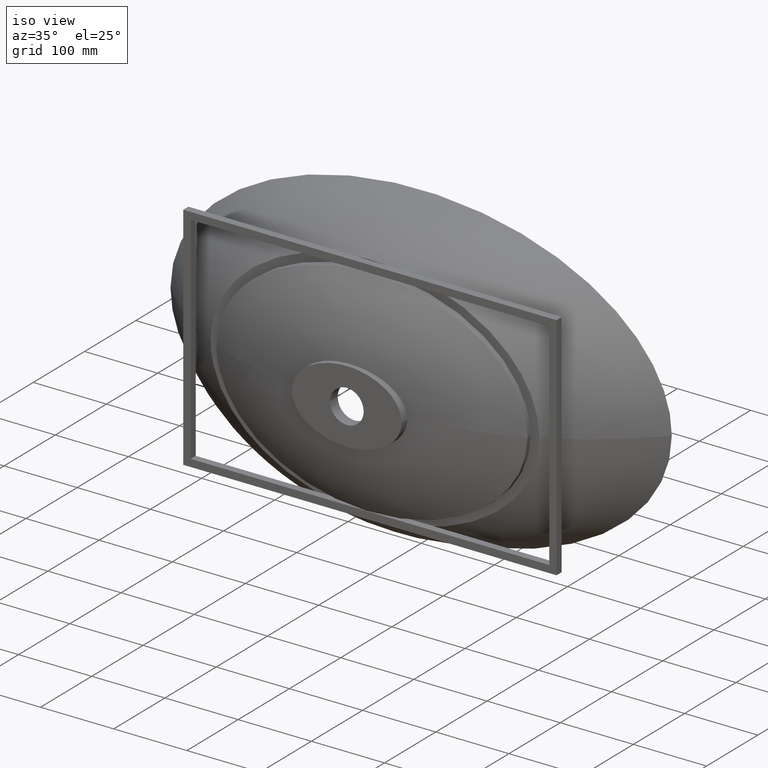
[diagram: clean part render]
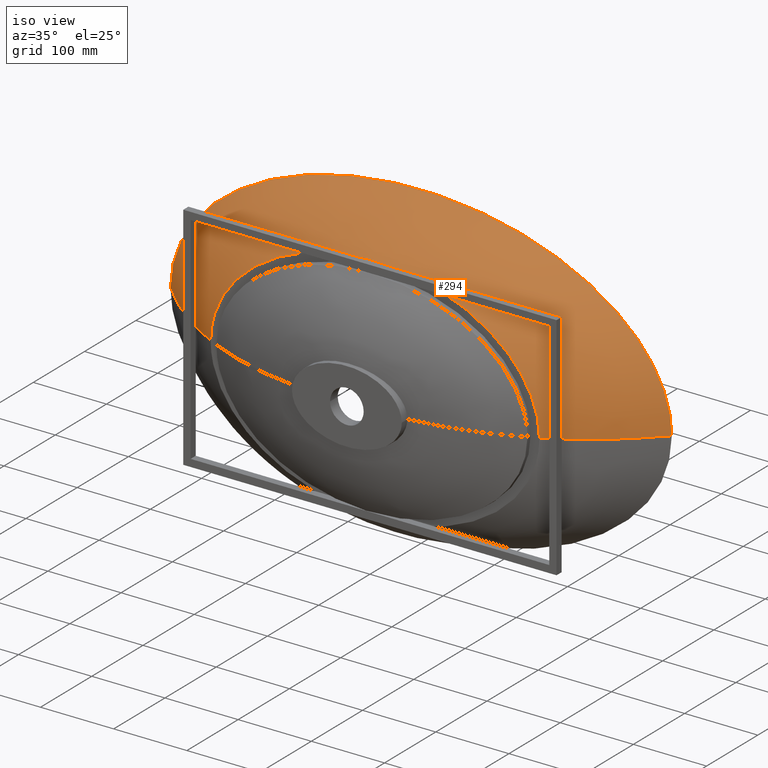
[diagram: same view with one face highlighted and labeled with its STEP entity id]
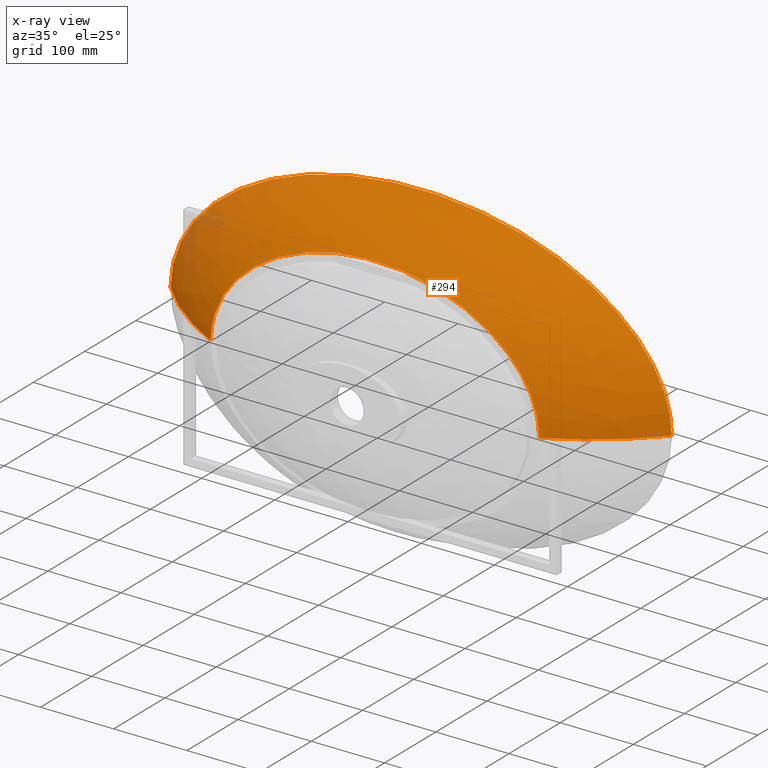
[diagram: x-ray of the same camera — body ghosted, the highlighted face saturated]
A machine part, iso view. The second image highlights one B-rep face of the part: STEP entity #294.
The next image is the same camera in x-ray: the body ghosted, the highlighted face saturated — about 2% of this face is hidden behind the body in this view.
In plain terms, the highlighted face is a freeform B-spline surface patch.
Its self-contained STEP definition (entity closure, byte-faithful):
#23 = CARTESIAN_POINT ( 'NONE',  ( -245.0270232497479100, 0.0000000000000000000, 152.0240655199164900 ) ) ;
#57 = CARTESIAN_POINT ( 'NONE',  ( -300.2359668465141500, 0.0000000000000000000, 107.1870942838846500 ) ) ;
#115 = CARTESIAN_POINT ( 'NONE',  ( 342.5000000000002300, 0.0000000000000000000, 6.126513386457087700E-014 ) ) ;
#116 = CARTESIAN_POINT ( 'NONE',  ( 333.8923408305556700, -9.406890245646575700, 7.484318858684090400E-014 ) ) ;
#121 = CARTESIAN_POINT ( 'NONE',  ( 315.8171951831190000, -27.43378400293167000, 4.459661288317443800E-014 ) ) ;
#129 = CARTESIAN_POINT ( 'NONE',  ( 286.3597889812024300, -51.89858569104408300, 3.260724263599785300E-014 ) ) ;
#133 = CARTESIAN_POINT ( 'NONE',  ( -172.7603754928495900, 0.0000000000000000000, 186.2777896492970900 ) ) ;
#135 = CARTESIAN_POINT ( 'NONE',  ( 255.8672473174313800, -72.83503139525741700, 5.078996564792964000E-014 ) ) ;
#136 = CARTESIAN_POINT ( 'NONE',  ( 234.7931395452014000, -84.77091306894256200, 3.331875821828149800E-014 ) ) ;
#146 = CARTESIAN_POINT ( 'NONE',  ( 224.6087551990099200, -90.00000000000002800, 2.585414352173020600E-014 ) ) ;
#222 = VERTEX_POINT ( 'NONE', #2876 ) ;
#294 = ADVANCED_FACE ( 'NONE', ( #2212 ), #3892, .T. ) ;
#418 = CARTESIAN_POINT ( 'NONE',  ( -224.6087551990092900, -90.00000000000005700, 6.502527523159562800E-014 ) ) ;
#423 = CARTESIAN_POINT ( 'NONE',  ( -224.6087551954226200, -90.00000000092079200, 0.7998453074805304000 ) ) ;
#425 = CARTESIAN_POINT ( 'NONE',  ( -224.6000546803275000, -90.00000000000001400, 1.602438689250854600 ) ) ;
#426 = B_SPLINE_CURVE_WITH_KNOTS ( 'NONE', 3,
 ( #578, #558, #568, #860, #894, #57, #23, #133, #1126, #908, #1068, #1037, #499, #842, #454, #456, #461 ),
 .UNSPECIFIED., .F., .F.,
 ( 4, 1, 1, 1, 1, 1, 1, 1, 1, 1, 1, 1, 1, 1, 4 ),
 ( 0.0000000000000000000, 0.006249999999999977800, 0.008333333333333303700, 0.04166666666666663000, 0.08333333333333337000, 0.1250000000000000000, 0.1666666666666666300, 0.2083333333333333700, 0.2500000000003849100, 0.2916666666666667400, 0.3333333333333332600, 0.3750000000000000000, 0.4166666666666667400, 0.4583333333333332600, 0.5000000000000000000 ),
 .UNSPECIFIED. ) ;
#431 = CARTESIAN_POINT ( 'NONE',  ( -224.5653669271117700, -90.00000000000000000, 3.203643830570029700 ) ) ;
#437 = CARTESIAN_POINT ( 'NONE',  ( -224.4356304394415200, -90.00000000000001400, 6.403188930941166900 ) ) ;
#445 = CARTESIAN_POINT ( 'NONE',  ( -224.3320902511742400, -90.00000000000004300, 8.001125822276117500 ) ) ;
#449 = CARTESIAN_POINT ( 'NONE',  ( -224.0567963208201000, -90.00000000000005700, 11.19376168102901100 ) ) ;
#454 = CARTESIAN_POINT ( 'NONE',  ( 334.4589211445978100, 0.0000000000000000000, 55.92556702164252900 ) ) ;
#456 = CARTESIAN_POINT ( 'NONE',  ( 342.5000000000002300, 0.0000000000000000000, 18.64185567388089700 ) ) ;
#459 = CARTESIAN_POINT ( 'NONE',  ( -223.8851517060861900, -90.00000000000002800, 12.78605858766555600 ) ) ;
#460 = B_SPLINE_CURVE_WITH_KNOTS ( 'NONE', 3,
 ( #146, #136, #135, #129, #121, #116, #115 ),
 .UNSPECIFIED., .F., .F.,
 ( 4, 1, 1, 1, 4 ),
 ( 0.5277770748058208100, 0.6365521945220584700, 0.7577014630147056500, 0.8788507315073530400, 1.000000000000000000 ),
 .UNSPECIFIED. ) ;
#461 = CARTESIAN_POINT ( 'NONE',  ( 342.5000000000002300, 0.0000000000000000000, 6.126513386457087700E-014 ) ) ;
#466 = CARTESIAN_POINT ( 'NONE',  ( -223.4770845552599200, -90.00000000000005700, 15.94887474229779100 ) ) ;
#470 = CARTESIAN_POINT ( 'NONE',  ( -223.2404936332408500, -90.00000000000005700, 17.52147828173318800 ) ) ;
#472 = CARTESIAN_POINT ( 'NONE',  ( -221.8989846311665700, -90.00000000000002800, 25.34161784860239000 ) ) ;
#473 = CARTESIAN_POINT ( 'NONE',  ( -220.3212562188008400, -90.00000000000004300, 31.46129098439789800 ) ) ;
#485 = CARTESIAN_POINT ( 'NONE',  ( -217.2423132182350700, -90.00000000000001400, 40.44815857881395300 ) ) ;
#499 = CARTESIAN_POINT ( 'NONE',  ( 245.0270232497479400, 0.0000000000000000000, 152.0240655199166600 ) ) ;
#501 = CARTESIAN_POINT ( 'NONE',  ( -216.0965986775162500, -90.00000000000004300, 43.41149151187612900 ) ) ;
#507 = CARTESIAN_POINT ( 'NONE',  ( -214.2005545410915800, -90.00000000000002800, 47.80849677269132800 ) ) ;
#517 = CARTESIAN_POINT ( 'NONE',  ( -213.5376664396139000, -89.99999999999994300, 49.26866589445636200 ) ) ;
#523 = CARTESIAN_POINT ( 'NONE',  ( -212.1637197586166200, -89.99999999999998600, 52.15098724000666400 ) ) ;
#525 = CARTESIAN_POINT ( 'NONE',  ( -211.4518818425249000, -90.00000000000001400, 53.57522240238431300 ) ) ;
#530 = CARTESIAN_POINT ( 'NONE',  ( -207.7729574092552700, -89.99999999999997200, 60.61489376676976100 ) ) ;
#536 = CARTESIAN_POINT ( 'NONE',  ( -197.1260250187818300, -90.00000000000004300, 76.27290926580208500 ) ) ;
#538 = CARTESIAN_POINT ( 'NONE',  ( -193.1280617582166000, -90.00000000000000000, 81.18661963408023000 ) ) ;
#542 = CARTESIAN_POINT ( 'NONE',  ( -187.7483965739029900, -90.00000000000004300, 87.06858351390047800 ) ) ;
#545 = CARTESIAN_POINT ( 'NONE',  ( -186.6525112088306200, -90.00000000000000000, 88.23261647207952800 ) ) ;
#551 = CARTESIAN_POINT ( 'NONE',  ( -184.4362280467504400, -90.00000000000000000, 90.52173407779298500 ) ) ;
#555 = CARTESIAN_POINT ( 'NONE',  ( -183.3143224338888300, -89.99999999999997200, 91.64851935489943500 ) ) ;
#557 = CARTESIAN_POINT ( 'NONE',  ( -179.9088991145562800, -90.00000000000000000, 94.97760211687794700 ) ) ;
#558 = CARTESIAN_POINT ( 'NONE',  ( -342.5000000000001100, 0.0000000000000000000, 2.796278351082148700 ) ) ;
#561 = CARTESIAN_POINT ( 'NONE',  ( -177.5857356615565000, -90.00000000000002800, 97.12870495864329700 ) ) ;
#563 = CARTESIAN_POINT ( 'NONE',  ( -165.7224630461082000, -89.99999999999998600, 107.5646795078555700 ) ) ;
#568 = CARTESIAN_POINT ( 'NONE',  ( -342.3793838171690700, 0.0000000000000000000, 6.524649485858299500 ) ) ;
#569 = CARTESIAN_POINT ( 'NONE',  ( -155.4429937223311500, -90.00000000000000000, 114.8948137491105300 ) ) ;
#575 = CARTESIAN_POINT ( 'NONE',  ( -141.7777618091449200, -89.99999999999995700, 123.0039141386274900 ) ) ;
#577 = CARTESIAN_POINT ( 'NONE',  ( -138.9993322928016300, -90.00000000000001400, 124.5748564826832600 ) ) ;
#578 = CARTESIAN_POINT ( 'NONE',  ( -342.5000000000001100, 0.0000000000000000000, 3.447762908503904100E-014 ) ) ;
#580 = CARTESIAN_POINT ( 'NONE',  ( -133.4134192301642100, -90.00000000000005700, 127.5878671535850200 ) ) ;
#583 = CARTESIAN_POINT ( 'NONE',  ( -130.6005323151618400, -90.00000000000005700, 129.0333694130205200 ) ) ;
#588 = CARTESIAN_POINT ( 'NONE',  ( -122.1055136286422700, -90.00000000000005700, 133.1973753581908100 ) ) ;
#594 = CARTESIAN_POINT ( 'NONE',  ( -116.3672369096719900, -90.00000000000001400, 135.7440301446923700 ) ) ;
#598 = CARTESIAN_POINT ( 'NONE',  ( -104.7527012766200900, -90.00000000000000000, 140.4150027235470500 ) ) ;
#604 = CARTESIAN_POINT ( 'NONE',  ( -98.87631043967492400, -90.00000000000001400, 142.5389167253569300 ) ) ;
#609 = CARTESIAN_POINT ( 'NONE',  ( -86.99288216074512500, -90.00000000000000000, 146.3868605669427400 ) ) ;
#611 = CARTESIAN_POINT ( 'NONE',  ( -80.98582603244715000, -90.00000000000001400, 148.1108332115027800 ) ) ;
#615 = CARTESIAN_POINT ( 'NONE',  ( -68.84589187585037000, -90.00000000000001400, 151.1736618339303700 ) ) ;
#618 = CARTESIAN_POINT ( 'NONE',  ( -62.71299465889509900, -90.00000000000004300, 152.5124590790070400 ) ) ;
#624 = CARTESIAN_POINT ( 'NONE',  ( -53.42121377179723400, -90.00000000000002800, 154.2377289787762300 ) ) ;
#628 = CARTESIAN_POINT ( 'NONE',  ( -50.30854711549531500, -90.00000000000001400, 154.7656630349790400 ) ) ;
#631 = CARTESIAN_POINT ( 'NONE',  ( -45.61651695401130300, -89.99999999999998600, 155.4870731712728700 ) ) ;
#638 = CARTESIAN_POINT ( 'NONE',  ( -44.04866629534765100, -89.99999999999997200, 155.7157878630461900 ) ) ;
#642 = CARTESIAN_POINT ( 'NONE',  ( -40.90527020731906300, -89.99999999999994300, 156.1496650315704400 ) ) ;
#651 = CARTESIAN_POINT ( 'NONE',  ( -39.33046059786759900, -89.99999999999998600, 156.3547023028764000 ) ) ;
#652 = CARTESIAN_POINT ( 'NONE',  ( -31.46364774309314100, -90.00000000000000000, 157.3178684936547100 ) ) ;
#656 = CARTESIAN_POINT ( 'NONE',  ( -25.17311288834501700, -90.00000000000001400, 157.8933475895222200 ) ) ;
#659 = CARTESIAN_POINT ( 'NONE',  ( -12.59774625518756300, -90.00000000000000000, 158.6627471811184800 ) ) ;
#663 = CARTESIAN_POINT ( 'NONE',  ( -6.312914937644762000, -90.00000000000001400, 158.8566368430383300 ) ) ;
#664 = CARTESIAN_POINT ( 'NONE',  ( 6.250970684039582000, -89.99999999999998600, 158.8579108817761200 ) ) ;
#669 = CARTESIAN_POINT ( 'NONE',  ( 12.53002473392257500, -90.00000000000002800, 158.6652782476792000 ) ) ;
#676 = CARTESIAN_POINT ( 'NONE',  ( 25.08246012554673100, -90.00000000000004300, 157.9004861331023900 ) ) ;
#680 = CARTESIAN_POINT ( 'NONE',  ( 31.35584173745339200, -90.00000000000000000, 157.3283447277664500 ) ) ;
#682 = CARTESIAN_POINT ( 'NONE',  ( 40.76158960030000600, -90.00000000000001400, 156.1808026057484500 ) ) ;
#686 = CARTESIAN_POINT ( 'NONE',  ( 43.89611656465211100, -90.00000000000004300, 155.7499622519113400 ) ) ;
#692 = CARTESIAN_POINT ( 'NONE',  ( 48.59679948769104400, -89.99999999999998600, 155.0296039733484300 ) ) ;
#696 = CARTESIAN_POINT ( 'NONE',  ( 50.16471477788579100, -89.99999999999997200, 154.7769190946772800 ) ) ;
#703 = CARTESIAN_POINT ( 'NONE',  ( 53.29372101650160000, -89.99999999999995700, 154.2475799145172700 ) ) ;
#716 = CARTESIAN_POINT ( 'NONE',  ( 54.85427832773713400, -89.99999999999995700, 153.9710392601694200 ) ) ;
#719 = CARTESIAN_POINT ( 'NONE',  ( 62.63728458753611500, -89.99999999999997200, 152.5288264620623700 ) ) ;
#726 = CARTESIAN_POINT ( 'NONE',  ( 68.80043167479618700, -90.00000000000000000, 151.1847431554206200 ) ) ;
#730 = CARTESIAN_POINT ( 'NONE',  ( 80.99764646543667400, -90.00000000000000000, 148.1082379221355400 ) ) ;
#732 = CARTESIAN_POINT ( 'NONE',  ( 87.03173406557111500, -90.00000000000001400, 146.3758758553849200 ) ) ;
#737 = CARTESIAN_POINT ( 'NONE',  ( 98.96599375253310900, -90.00000000000000000, 142.5082634831003100 ) ) ;
#743 = CARTESIAN_POINT ( 'NONE',  ( 104.8661847472850000, -89.99999999999998600, 140.3730700625396800 ) ) ;
#745 = CARTESIAN_POINT ( 'NONE',  ( 116.5250039042551700, -89.99999999999998600, 135.6767878276130800 ) ) ;
#750 = CARTESIAN_POINT ( 'NONE',  ( 122.2837701920104500, -90.00000000000002800, 133.1161145674494700 ) ) ;
#753 = CARTESIAN_POINT ( 'NONE',  ( 129.3863615749837900, -90.00000000000002800, 129.6268562508942600 ) ) ;
#764 = CARTESIAN_POINT ( 'NONE',  ( 130.8020677230053900, -89.99999999999998600, 128.9145271759853700 ) ) ;
#771 = CARTESIAN_POINT ( 'NONE',  ( 133.6235835517602500, -89.99999999999998600, 127.4600952518097600 ) ) ;
#777 = CARTESIAN_POINT ( 'NONE',  ( 135.0307307824799400, -90.00000000000000000, 126.7172640077398900 ) ) ;
#781 = CARTESIAN_POINT ( 'NONE',  ( 139.2268676597655300, -89.99999999999997200, 124.4481348348908700 ) ) ;
#790 = CARTESIAN_POINT ( 'NONE',  ( 141.9857422822830100, -89.99999999999998600, 122.8840140109704700 ) ) ;
#792 = CARTESIAN_POINT ( 'NONE',  ( 155.5810572553354800, -89.99999999999998600, 114.7981637988771600 ) ) ;
#807 = CARTESIAN_POINT ( 'NONE',  ( 165.8238127482177000, -90.00000000000002800, 107.4853459928598200 ) ) ;
#813 = CARTESIAN_POINT ( 'NONE',  ( 177.6624494167944600, -90.00000000000000000, 97.05871204233115200 ) ) ;
#816 = CARTESIAN_POINT ( 'NONE',  ( -342.5000000000001100, 0.0000000000000000000, 3.447762908503904100E-014 ) ) ;
#818 = CARTESIAN_POINT ( 'NONE',  ( 179.9817316946779600, -90.00000000000001400, 94.90883194237389400 ) ) ;
#823 = CARTESIAN_POINT ( 'NONE',  ( 183.3828153854087500, -90.00000000000001400, 91.58028991884120300 ) ) ;
#829 = CARTESIAN_POINT ( 'NONE',  ( 184.5035213858579900, -90.00000000000002800, 90.45346857744719700 ) ) ;
#833 = CARTESIAN_POINT ( 'NONE',  ( 186.7178827508949400, -90.00000000000000000, 88.16378076996167600 ) ) ;
#834 = EDGE_CURVE ( 'NONE', #222, #2995, #2246, .T. ) ;
#839 = CARTESIAN_POINT ( 'NONE',  ( 187.8124869294719000, -89.99999999999994300, 86.99979094167962000 ) ) ;
#840 = CARTESIAN_POINT ( 'NONE',  ( 193.1847376147110500, -89.99999999999990100, 81.11933213005086400 ) ) ;
#842 = CARTESIAN_POINT ( 'NONE',  ( 300.2359668465141500, 0.0000000000000000000, 107.1870942838847600 ) ) ;
#847 = CARTESIAN_POINT ( 'NONE',  ( 197.1834501206726000, -89.99999999999995700, 76.20019870879747300 ) ) ;
#852 = CARTESIAN_POINT ( 'NONE',  ( 204.5155080263721700, -90.00000000000000000, 65.88415121563848200 ) ) ;
#857 = CARTESIAN_POINT ( 'NONE',  ( 207.8495164444373700, -90.00000000000005700, 60.48771323779405400 ) ) ;
#859 = CARTESIAN_POINT ( 'NONE',  ( 212.2789146312765600, -90.00000000000001400, 51.98259666664616700 ) ) ;
#860 = CARTESIAN_POINT ( 'NONE',  ( -340.9820045202297400, 0.0000000000000000000, 25.14318496094210400 ) ) ;
#877 = CARTESIAN_POINT ( 'NONE',  ( 213.6452273956722400, -89.99999999999995700, 49.10639889797718600 ) ) ;
#879 = CARTESIAN_POINT ( 'NONE',  ( 216.1484834975445900, -89.99999999999995700, 43.28056283731726200 ) ) ;
#884 = CARTESIAN_POINT ( 'NONE',  ( 217.2862887375662000, -90.00000000000004300, 40.32925495053837700 ) ) ;
#887 = CARTESIAN_POINT ( 'NONE',  ( 220.3501698825549200, -90.00000000000001400, 31.35744119371516100 ) ) ;
#894 = CARTESIAN_POINT ( 'NONE',  ( -332.1773908580587400, 0.0000000000000000000, 59.34300217245861100 ) ) ;
#897 = CARTESIAN_POINT ( 'NONE',  ( 221.9296322135329000, -89.99999999999997200, 25.22003041470064800 ) ) ;
#902 = CARTESIAN_POINT ( 'NONE',  ( 223.2699617406168800, -89.99999999999997200, 17.33443364287641200 ) ) ;
#905 = CARTESIAN_POINT ( 'NONE',  ( 223.5045626203326500, -90.00000000000005700, 15.75543658640098400 ) ) ;
#908 = CARTESIAN_POINT ( 'NONE',  ( -7.029695835852889400E-014, 0.0000000000000000000, 214.9944952653620200 ) ) ;
#914 = CARTESIAN_POINT ( 'NONE',  ( 223.9061789635247500, -90.00000000000004300, 12.60105177421868600 ) ) ;
#915 = CARTESIAN_POINT ( 'NONE',  ( 224.0733981768048900, -89.99999999999997200, 11.02447205066923000 ) ) ;
#919 = CARTESIAN_POINT ( 'NONE',  ( 224.4747639877141700, -90.00000000000000000, 6.296562262524767900 ) ) ;
#930 = CARTESIAN_POINT ( 'NONE',  ( 224.6087551990099200, -90.00000000000002800, 2.585414352173020600E-014 ) ) ;
#1020 = CARTESIAN_POINT ( 'NONE',  ( 224.6087551990097500, -89.99999999999997200, 3.147059091639472100 ) ) ;
#1037 = CARTESIAN_POINT ( 'NONE',  ( 172.7603754928494200, 0.0000000000000000000, 186.2777896492970300 ) ) ;
#1068 = CARTESIAN_POINT ( 'NONE',  ( 90.13885508194135800, 0.0000000000000000000, 207.5110094692759300 ) ) ;
#1126 = CARTESIAN_POINT ( 'NONE',  ( -90.13885508194154300, 0.0000000000000000000, 207.5110094692758500 ) ) ;
#1372 = CARTESIAN_POINT ( 'NONE',  ( -342.5000000000001100, 0.0000000000000000000, 3.447762908503904100E-014 ) ) ;
#1376 = CARTESIAN_POINT ( 'NONE',  ( -342.5000000000001100, 0.0000000000000000000, 2.796278351082148700 ) ) ;
#1378 = CARTESIAN_POINT ( 'NONE',  ( -342.3793838171690700, 0.0000000000000000000, 6.524649485858299500 ) ) ;
#1391 = CARTESIAN_POINT ( 'NONE',  ( -340.9820045202297400, 0.0000000000000000000, 25.14318496094210400 ) ) ;
#1393 = CARTESIAN_POINT ( 'NONE',  ( -332.1773908580587400, 0.0000000000000000000, 59.34300217245861100 ) ) ;
#1397 = CARTESIAN_POINT ( 'NONE',  ( -300.2359668465141500, 0.0000000000000000000, 107.1870942838846500 ) ) ;
#1405 = CARTESIAN_POINT ( 'NONE',  ( -245.0270232497479100, 0.0000000000000000000, 152.0240655199164900 ) ) ;
#1407 = CARTESIAN_POINT ( 'NONE',  ( -172.7603754928495900, 0.0000000000000000000, 186.2777896492970900 ) ) ;
#1411 = CARTESIAN_POINT ( 'NONE',  ( -90.13885508194154300, 0.0000000000000000000, 207.5110094692758500 ) ) ;
#1413 = CARTESIAN_POINT ( 'NONE',  ( -7.029695835852889400E-014, 0.0000000000000000000, 214.9944952653620200 ) ) ;
#1416 = CARTESIAN_POINT ( 'NONE',  ( 90.13885508194135800, 0.0000000000000000000, 207.5110094692759300 ) ) ;
#1424 = CARTESIAN_POINT ( 'NONE',  ( 172.7603754928494200, 0.0000000000000000000, 186.2777896492970300 ) ) ;
#1426 = CARTESIAN_POINT ( 'NONE',  ( 245.0270232497479400, 0.0000000000000000000, 152.0240655199166600 ) ) ;
#1429 = CARTESIAN_POINT ( 'NONE',  ( 300.2359668465141500, 0.0000000000000000000, 107.1870942838847600 ) ) ;
#1432 = CARTESIAN_POINT ( 'NONE',  ( 334.4589211445978100, 0.0000000000000000000, 55.92556702164252900 ) ) ;
#1434 = CARTESIAN_POINT ( 'NONE',  ( 346.5205394277014600, 0.0000000000000000000, 8.027384139329177100E-014 ) ) ;
#1437 = CARTESIAN_POINT ( 'NONE',  ( 334.4589211445978700, 0.0000000000000000000, -55.92556702164242900 ) ) ;
#1443 = CARTESIAN_POINT ( 'NONE',  ( 300.2359668465143700, 0.0000000000000000000, -107.1870942838847300 ) ) ;
#1445 = CARTESIAN_POINT ( 'NONE',  ( 245.0270232497480000, 0.0000000000000000000, -152.0240655199165800 ) ) ;
#1447 = CARTESIAN_POINT ( 'NONE',  ( 172.7603754928495300, 0.0000000000000000000, -186.2777896492970600 ) ) ;
#1450 = CARTESIAN_POINT ( 'NONE',  ( 90.13885508194151400, 0.0000000000000000000, -207.5110094692759600 ) ) ;
#1452 = CARTESIAN_POINT ( 'NONE',  ( 5.525365321529252000E-014, 0.0000000000000000000, -214.9944952653622200 ) ) ;
#1458 = CARTESIAN_POINT ( 'NONE',  ( -90.13885508194142900, 0.0000000000000000000, -207.5110094692760200 ) ) ;
#1464 = CARTESIAN_POINT ( 'NONE',  ( -172.7603754928495300, 0.0000000000000000000, -186.2777896492971200 ) ) ;
#1467 = CARTESIAN_POINT ( 'NONE',  ( -245.0270232497479700, 0.0000000000000000000, -152.0240655199166300 ) ) ;
#1470 = CARTESIAN_POINT ( 'NONE',  ( -300.2359668465143700, 0.0000000000000000000, -107.1870942838846900 ) ) ;
#1473 = CARTESIAN_POINT ( 'NONE',  ( -332.1773908580589700, 0.0000000000000000000, -59.34300217245854000 ) ) ;
#1477 = CARTESIAN_POINT ( 'NONE',  ( -340.9820045202297900, 0.0000000000000000000, -25.14318496094208300 ) ) ;
#1485 = CARTESIAN_POINT ( 'NONE',  ( -342.3793838171690700, 0.0000000000000000000, -6.524649485858280900 ) ) ;
#1489 = CARTESIAN_POINT ( 'NONE',  ( -342.5000000000001100, 0.0000000000000000000, -2.796278351082128700 ) ) ;
#1494 = CARTESIAN_POINT ( 'NONE',  ( -342.5000000000001100, 0.0000000000000000000, 3.447762908503904100E-014 ) ) ;
#1496 = CARTESIAN_POINT ( 'NONE',  ( -333.8923408305554400, -9.406890245646570400, 3.361026734705063700E-014 ) ) ;
#1499 = CARTESIAN_POINT ( 'NONE',  ( -333.8923408305554400, -9.406890245646575700, 2.762531405772933100 ) ) ;
#1504 = CARTESIAN_POINT ( 'NONE',  ( -333.7746143842461500, -9.406705164250645600, 6.445906613470129700 ) ) ;
#1508 = CARTESIAN_POINT ( 'NONE',  ( -332.4107917054511200, -9.404607575096728000, 24.83989035607555400 ) ) ;
#1509 = CARTESIAN_POINT ( 'NONE',  ( -323.8180825257123800, -9.391672441980741600, 58.62877271141391600 ) ) ;
#1512 = CARTESIAN_POINT ( 'NONE',  ( -292.6564828133619500, -9.351365826865635000, 105.9227970547956900 ) ) ;
#1516 = CARTESIAN_POINT ( 'NONE',  ( -238.8230306811789200, -9.295841408084553900, 150.2519068852021200 ) ) ;
#1521 = CARTESIAN_POINT ( 'NONE',  ( -168.3784249752774800, -9.240316989303419600, 184.1492413429232000 ) ) ;
#1522 = CARTESIAN_POINT ( 'NONE',  ( -87.84457295183493400, -9.197131330251217200, 205.1943581219841200 ) ) ;
#1526 = CARTESIAN_POINT ( 'NONE',  ( -3.412459623596338300E-012, -9.178623190657452500, 212.6220964899586400 ) ) ;
#1530 = CARTESIAN_POINT ( 'NONE',  ( 87.84457295182826900, -9.197131330251110600, 205.1943581219826200 ) ) ;
#1531 = CARTESIAN_POINT ( 'NONE',  ( 168.3784249752687600, -9.240316989302900900, 184.1492413429247400 ) ) ;
#1532 = CARTESIAN_POINT ( 'NONE',  ( 238.8230306811721300, -9.295841408084038800, 150.2519068852035700 ) ) ;
#1536 = CARTESIAN_POINT ( 'NONE',  ( 292.6564828133572900, -9.351365826865237100, 105.9227970547965800 ) ) ;
#1538 = CARTESIAN_POINT ( 'NONE',  ( 326.0439110765923400, -9.394551485917322300, 55.25062811545836900 ) ) ;
#1542 = CARTESIAN_POINT ( 'NONE',  ( 337.8165557075367400, -9.413059625511145600, 4.600259932193291600E-014 ) ) ;
#1544 = CARTESIAN_POINT ( 'NONE',  ( 326.0439110765947800, -9.394551485917539000, -55.25062811545807100 ) ) ;
#1553 = CARTESIAN_POINT ( 'NONE',  ( 292.6564828133622300, -9.351365826865629700, -105.9227970547958200 ) ) ;
#1556 = CARTESIAN_POINT ( 'NONE',  ( 238.8230306811788400, -9.295841408084543300, -150.2519068852022900 ) ) ;
#1564 = CARTESIAN_POINT ( 'NONE',  ( 168.3784249752770600, -9.240316989303401800, -184.1492413429232600 ) ) ;
#1567 = CARTESIAN_POINT ( 'NONE',  ( 87.84457295183462100, -9.197131330251215400, -205.1943581219841500 ) ) ;
#1569 = CARTESIAN_POINT ( 'NONE',  ( 3.074528345611851000E-012, -9.178623190657447100, -212.6220964899588100 ) ) ;
#1572 = CARTESIAN_POINT ( 'NONE',  ( -87.84457295182861000, -9.197131330251107100, -205.1943581219827600 ) ) ;
#1573 = EDGE_CURVE ( 'NONE', #222, #3552, #460, .T. ) ;
#1578 = CARTESIAN_POINT ( 'NONE',  ( -168.3784249752691800, -9.240316989302911600, -184.1492413429247100 ) ) ;
#1583 = CARTESIAN_POINT ( 'NONE',  ( -238.8230306811723300, -9.295841408084045900, -150.2519068852035100 ) ) ;
#1586 = CARTESIAN_POINT ( 'NONE',  ( -292.6564828133575700, -9.351365826865237100, -105.9227970547964500 ) ) ;
#1592 = CARTESIAN_POINT ( 'NONE',  ( -323.8180825257100500, -9.391672441980514200, -58.62877271141406500 ) ) ;
#1594 = CARTESIAN_POINT ( 'NONE',  ( -332.4107917054501500, -9.404607575096628500, -24.83989035607556400 ) ) ;
#1599 = CARTESIAN_POINT ( 'NONE',  ( -333.7746143842458700, -9.406705164250620800, -6.445906613470115500 ) ) ;
#1602 = CARTESIAN_POINT ( 'NONE',  ( -333.8923408305553800, -9.406890245646563300, -2.762531405772914900 ) ) ;
#1607 = CARTESIAN_POINT ( 'NONE',  ( -333.8923408305554400, -9.406890245646570400, 3.361026734705063700E-014 ) ) ;
#1609 = CARTESIAN_POINT ( 'NONE',  ( -315.8171951831189400, -27.43378400293167000, 3.187554387107383000E-014 ) ) ;
#1614 = CARTESIAN_POINT ( 'NONE',  ( -315.8171951831191100, -27.43378400293168100, 2.677382229066280800 ) ) ;
#1629 = CARTESIAN_POINT ( 'NONE',  ( -315.7056064712316500, -27.43358278731455600, 6.247225201154607000 ) ) ;
#1632 = CARTESIAN_POINT ( 'NONE',  ( -314.4130170345785600, -27.43130234365380100, 24.07450165647117800 ) ) ;
#1638 = CARTESIAN_POINT ( 'NONE',  ( -306.2698917355504600, -27.41723960774562100, 56.82497548507869600 ) ) ;
#1639 = CARTESIAN_POINT ( 'NONE',  ( -276.7571078980300300, -27.37341931779315000, 102.7076081376315800 ) ) ;
#1643 = CARTESIAN_POINT ( 'NONE',  ( -225.8179432464374900, -27.31305463265444500, 145.7267403886503400 ) ) ;
#1650 = CARTESIAN_POINT ( 'NONE',  ( -159.1965523318101000, -27.25268994751569100, 178.6758916885428600 ) ) ;
#1654 = CARTESIAN_POINT ( 'NONE',  ( -83.04105186448377700, -27.20573963685198700, 199.1878665094277500 ) ) ;
#1662 = CARTESIAN_POINT ( 'NONE',  ( -8.903295202599610900E-012, -27.18561807513900800, 206.4452590675518600 ) ) ;
#1665 = CARTESIAN_POINT ( 'NONE',  ( 83.04105186446634000, -27.20573963685186700, 199.1878665094235700 ) ) ;
#1668 = CARTESIAN_POINT ( 'NONE',  ( 159.1965523317873300, -27.25268994751512300, 178.6758916885470100 ) ) ;
#1676 = CARTESIAN_POINT ( 'NONE',  ( 225.8179432464194500, -27.31305463265388400, 145.7267403886539500 ) ) ;
#1679 = CARTESIAN_POINT ( 'NONE',  ( 276.7571078980175200, -27.37341931779271000, 102.7076081376337400 ) ) ;
#1682 = CARTESIAN_POINT ( 'NONE',  ( 308.3779477239385200, -27.42036962845628200, 53.54764458132557800 ) ) ;
#1694 = CARTESIAN_POINT ( 'NONE',  ( 319.5368189127076400, -27.44049119016931100, -5.029546043641410400E-014 ) ) ;
#1696 = CARTESIAN_POINT ( 'NONE',  ( 308.3779477239447700, -27.42036962845650200, -53.54764458132505900 ) ) ;
#1697 = CARTESIAN_POINT ( 'NONE',  ( 276.7571078980298600, -27.37341931779309000, -102.7076081376318900 ) ) ;
#1700 = CARTESIAN_POINT ( 'NONE',  ( -224.6087551990092900, -90.00000000000005700, 6.502527523159562800E-014 ) ) ;
#1706 = CARTESIAN_POINT ( 'NONE',  ( 225.8179432464368100, -27.31305463265437400, -145.7267403886507400 ) ) ;
#1708 = CARTESIAN_POINT ( 'NONE',  ( 159.1965523318089600, -27.25268994751559500, -178.6758916885431200 ) ) ;
#1709 = CARTESIAN_POINT ( 'NONE',  ( -234.7931395452007700, -84.77091306894256200, 6.087522438726104800E-014 ) ) ;
#1711 = CARTESIAN_POINT ( 'NONE',  ( 83.04105186448288100, -27.20573963685189500, -199.1878665094276600 ) ) ;
#1712 = CARTESIAN_POINT ( 'NONE',  ( 7.954282448452562500E-012, -27.18561807513891200, -206.4452590675518900 ) ) ;
#1713 = CARTESIAN_POINT ( 'NONE',  ( -255.8672473174309200, -72.83503139525741700, 5.037152809154790800E-014 ) ) ;
#1715 = CARTESIAN_POINT ( 'NONE',  ( -286.3597889812024300, -51.89858569104405500, 3.989863994746656300E-014 ) ) ;
#1721 = CARTESIAN_POINT ( 'NONE',  ( -315.8171951831189400, -27.43378400293167000, 3.187554387107383000E-014 ) ) ;
#1723 = CARTESIAN_POINT ( 'NONE',  ( -83.04105186446727800, -27.20573963685178100, -199.1878665094237400 ) ) ;
#1726 = CARTESIAN_POINT ( 'NONE',  ( -333.8923408305554400, -9.406890245646570400, 3.361026734705063700E-014 ) ) ;
#1728 = CARTESIAN_POINT ( 'NONE',  ( -159.1965523317884700, -27.25268994751506600, -178.6758916885467300 ) ) ;
#1729 = CARTESIAN_POINT ( 'NONE',  ( -342.5000000000001100, 0.0000000000000000000, 3.447762908503904100E-014 ) ) ;
#1731 = CARTESIAN_POINT ( 'NONE',  ( -225.8179432464201600, -27.31305463265382700, -145.7267403886536700 ) ) ;
#1736 = CARTESIAN_POINT ( 'NONE',  ( -276.7571078980180900, -27.37341931779266300, -102.7076081376334600 ) ) ;
#1740 = CARTESIAN_POINT ( 'NONE',  ( -306.2698917355439800, -27.41723960774534800, -56.82497548507919300 ) ) ;
#1751 = CARTESIAN_POINT ( 'NONE',  ( -314.4130170345757700, -27.43130234365367700, -24.07450165647125600 ) ) ;
#1753 = CARTESIAN_POINT ( 'NONE',  ( -315.7056064712309100, -27.43358278731452400, -6.247225201154599000 ) ) ;
#1755 = CARTESIAN_POINT ( 'NONE',  ( -315.8171951831187700, -27.43378400293166000, -2.677382229066263900 ) ) ;
#1760 = CARTESIAN_POINT ( 'NONE',  ( -315.8171951831189400, -27.43378400293167000, 3.187554387107383000E-014 ) ) ;
#1765 = CARTESIAN_POINT ( 'NONE',  ( -286.3597889812024300, -51.89858569104405500, 3.989863994746656300E-014 ) ) ;
#1769 = CARTESIAN_POINT ( 'NONE',  ( -286.3597889812026000, -51.89858569104404800, 2.499374144626501900 ) ) ;
#1771 = CARTESIAN_POINT ( 'NONE',  ( -286.2583838241691300, -51.89907203966294700, 5.831873004128444100 ) ) ;
#1773 = CARTESIAN_POINT ( 'NONE',  ( -285.0838792127716500, -51.90458399067714600, 22.47413908997623400 ) ) ;
#1776 = CARTESIAN_POINT ( 'NONE',  ( -277.6854160915526700, -51.93857435526518200, 53.05027226320515900 ) ) ;
#1779 = CARTESIAN_POINT ( 'NONE',  ( -250.8890088679846400, -52.04449027671631700, 95.92932345267078600 ) ) ;
#1785 = CARTESIAN_POINT ( 'NONE',  ( -204.6820567257369700, -52.19039486238897000, 136.1454173449447200 ) ) ;
#1788 = CARTESIAN_POINT ( 'NONE',  ( -144.2839646085951100, -52.33629944806179400, 167.0018363163635500 ) ) ;
#1794 = CARTESIAN_POINT ( 'NONE',  ( -75.24959830076298300, -52.44978079247453500, 186.2671264721624000 ) ) ;
#1798 = CARTESIAN_POINT ( 'NONE',  ( -1.348275148374581400E-011, -52.49841565436562300, 193.1013859175788800 ) ) ;
#1802 = CARTESIAN_POINT ( 'NONE',  ( 75.24959830073663600, -52.44978079247482600, 186.2671264721557200 ) ) ;
#1809 = CARTESIAN_POINT ( 'NONE',  ( 144.2839646085607200, -52.33629944806317300, 167.0018363163701200 ) ) ;
#1812 = CARTESIAN_POINT ( 'NONE',  ( 204.6820567257095100, -52.19039486239035600, 136.1454173449503700 ) ) ;
#1814 = CARTESIAN_POINT ( 'NONE',  ( 250.8890088679656000, -52.04449027671739000, 95.92932345267412600 ) ) ;
#1820 = CARTESIAN_POINT ( 'NONE',  ( 279.5994451789407500, -51.93100893230496200, 49.98748289253003900 ) ) ;
#1823 = CARTESIAN_POINT ( 'NONE',  ( 289.7399608823307600, -51.88237407041376100, -1.357619518907237800E-013 ) ) ;
#1826 = ORIENTED_EDGE ( 'NONE', *, *, #3938, .F. ) ;
#1828 = CARTESIAN_POINT ( 'NONE',  ( 279.5994451789503000, -51.93100893230445800, -49.98748289252925800 ) ) ;
#1830 = CARTESIAN_POINT ( 'NONE',  ( 250.8890088679843300, -52.04449027671643100, -95.92932345267122700 ) ) ;
#1836 = CARTESIAN_POINT ( 'NONE',  ( 204.6820567257360000, -52.19039486238915500, -136.1454173449452600 ) ) ;
#1846 = CARTESIAN_POINT ( 'NONE',  ( 144.2839646085935200, -52.33629944806200000, -167.0018363163639500 ) ) ;
#1847 = CARTESIAN_POINT ( 'NONE',  ( 75.24959830076167600, -52.44978079247471200, -186.2671264721621200 ) ) ;
#1855 = CARTESIAN_POINT ( 'NONE',  ( 342.5000000000002300, 0.0000000000000000000, 6.126513386457087700E-014 ) ) ;
#1862 = CARTESIAN_POINT ( 'NONE',  ( 1.207161406606039100E-011, -52.49841565436580000, -193.1013859175788200 ) ) ;
#1877 = CARTESIAN_POINT ( 'NONE',  ( -75.24959830073797200, -52.44978079247500300, -186.2671264721559200 ) ) ;
#1881 = CARTESIAN_POINT ( 'NONE',  ( -144.2839646085623400, -52.33629944806327900, -167.0018363163695800 ) ) ;
#1884 = CARTESIAN_POINT ( 'NONE',  ( -204.6820567257105900, -52.19039486239042700, -136.1454173449497500 ) ) ;
#1889 = CARTESIAN_POINT ( 'NONE',  ( -250.8890088679663400, -52.04449027671744000, -95.92932345267362800 ) ) ;
#1891 = CARTESIAN_POINT ( 'NONE',  ( -277.6854160915426100, -51.93857435526582100, -53.05027226320593300 ) ) ;
#1894 = CARTESIAN_POINT ( 'NONE',  ( -285.0838792127673300, -51.90458399067739500, -22.47413908997632600 ) ) ;
#1897 = CARTESIAN_POINT ( 'NONE',  ( -286.2583838241679400, -51.89907203966299700, -5.831873004128419200 ) ) ;
#1902 = EDGE_CURVE ( 'NONE', #2995, #2910, #3528, .T. ) ;
#1904 = CARTESIAN_POINT ( 'NONE',  ( -286.3597889812022000, -51.89858569104406900, -2.499374144626466300 ) ) ;
#1908 = CARTESIAN_POINT ( 'NONE',  ( -286.3597889812024300, -51.89858569104405500, 3.989863994746656300E-014 ) ) ;
#1911 = CARTESIAN_POINT ( 'NONE',  ( -254.7924892434033700, -73.57296968555016300, 5.074066167232160800E-014 ) ) ;
#1913 = CARTESIAN_POINT ( 'NONE',  ( -254.7924892434036500, -73.57296968555013400, 2.274973315200654200 ) ) ;
#1917 = CARTESIAN_POINT ( 'NONE',  ( -254.7021467635305800, -73.57453888298243800, 5.308271068801451200 ) ) ;
#1919 = CARTESIAN_POINT ( 'NONE',  ( -253.6558368839144700, -73.59232312054909600, 20.45649955607880700 ) ) ;
#1922 = CARTESIAN_POINT ( 'NONE',  ( -247.0652839064521800, -73.70199258554487200, 48.28929364792411900 ) ) ;
#1928 = CARTESIAN_POINT ( 'NONE',  ( -223.2040570709271500, -74.04372891526246300, 87.34687646269638600 ) ) ;
#1934 = CARTESIAN_POINT ( 'NONE',  ( -182.0809663606704000, -74.51448814497598500, 123.9867195797911700 ) ) ;
#1936 = CARTESIAN_POINT ( 'NONE',  ( -128.3457341943220900, -74.98524737468997600, 152.1318362895888500 ) ) ;
#1941 = CARTESIAN_POINT ( 'NONE',  ( -66.93067135306849000, -75.35139344224704400, 169.7380618248684000 ) ) ;
#1948 = CARTESIAN_POINT ( 'NONE',  ( -1.482174431176724100E-011, -75.50831318548552000, 175.9945456742910600 ) ) ;
#1953 = CARTESIAN_POINT ( 'NONE',  ( 66.93067135303954300, -75.35139344224798200, 169.7380618248606700 ) ) ;
#1956 = CARTESIAN_POINT ( 'NONE',  ( 128.3457341942844300, -74.98524737469439600, 152.1318362895964600 ) ) ;
#1959 = CARTESIAN_POINT ( 'NONE',  ( 182.0809663606404500, -74.51448814498039000, 123.9867195797977200 ) ) ;
#1963 = CARTESIAN_POINT ( 'NONE',  ( 223.2040570709064900, -74.04372891526590200, 87.34687646270028000 ) ) ;
#1970 = CARTESIAN_POINT ( 'NONE',  ( 248.7696572518366300, -73.67758284770977200, 45.49946630401296200 ) ) ;
#1976 = CARTESIAN_POINT ( 'NONE',  ( 257.8039052391846400, -73.52066310447084200, -1.379617164981465200E-013 ) ) ;
#1984 = CARTESIAN_POINT ( 'NONE',  ( 248.7696572518471200, -73.67758284770792400, -45.49946630401206000 ) ) ;
#1986 = CARTESIAN_POINT ( 'NONE',  ( 223.2040570709269800, -74.04372891526243400, -87.34687646269695400 ) ) ;
#1988 = CARTESIAN_POINT ( 'NONE',  ( 182.0809663606694400, -74.51448814497598500, -123.9867195797919400 ) ) ;
#1995 = CARTESIAN_POINT ( 'NONE',  ( 128.3457341943204100, -74.98524737468994800, -152.1318362895895000 ) ) ;
#1997 = CARTESIAN_POINT ( 'NONE',  ( 66.93067135306699800, -75.35139344224687400, -169.7380618248683700 ) ) ;
#2000 = CARTESIAN_POINT ( 'NONE',  ( 1.319134351718039900E-011, -75.50831318548530600, -175.9945456742913200 ) ) ;
#2003 = CARTESIAN_POINT ( 'NONE',  ( -66.93067135304107800, -75.35139344224779700, -169.7380618248611800 ) ) ;
#2011 = CARTESIAN_POINT ( 'NONE',  ( -128.3457341942861900, -74.98524737469408300, -152.1318362895960700 ) ) ;
#2013 = CARTESIAN_POINT ( 'NONE',  ( -182.0809663606414700, -74.51448814498010600, -123.9867195797971800 ) ) ;
#2017 = CARTESIAN_POINT ( 'NONE',  ( -223.2040570709070000, -74.04372891526571700, -87.34687646269976800 ) ) ;
#2019 = CARTESIAN_POINT ( 'NONE',  ( -247.0652839064412700, -73.70199258554674800, -48.28929364792502800 ) ) ;
#2025 = CARTESIAN_POINT ( 'NONE',  ( -253.6558368839098100, -73.59232312054986400, -20.45649955607890300 ) ) ;
#2032 = CARTESIAN_POINT ( 'NONE',  ( -254.7021467635293000, -73.57453888298262300, -5.308271068801404100 ) ) ;
#2034 = CARTESIAN_POINT ( 'NONE',  ( -254.7924892434030800, -73.57296968555020600, -2.274973315200593300 ) ) ;
#2037 = CARTESIAN_POINT ( 'NONE',  ( -254.7924892434033700, -73.57296968555016300, 5.074066167232160800E-014 ) ) ;
#2040 = CARTESIAN_POINT ( 'NONE',  ( -221.3861477797171100, -92.28927771192240900, 6.765421556309547700E-014 ) ) ;
#2045 = CARTESIAN_POINT ( 'NONE',  ( -221.3861477797173600, -92.28927771192233800, 2.009147174836712200 ) ) ;
#2049 = CARTESIAN_POINT ( 'NONE',  ( -221.3076342443904400, -92.29201442860609500, 4.688010074618898000 ) ) ;
#2050 = CARTESIAN_POINT ( 'NONE',  ( -220.3983311714919800, -92.32303055102259700, 18.06626236435482000 ) ) ;
#2054 = CARTESIAN_POINT ( 'NONE',  ( -214.6708170191520300, -92.51429663926008100, 42.64764360751468800 ) ) ;
#2057 = CARTESIAN_POINT ( 'NONE',  ( -193.9354860099091100, -93.11029271707671700, 77.15344515846290100 ) ) ;
#2062 = CARTESIAN_POINT ( 'NONE',  ( -158.2027636859569700, -93.93130772223315700, 109.5266156514104800 ) ) ;
#2066 = CARTESIAN_POINT ( 'NONE',  ( -111.5135251632946600, -94.75232272739043500, 134.4080926204124500 ) ) ;
#2067 = CARTESIAN_POINT ( 'NONE',  ( -58.15198397389933400, -95.39088995362695300, 149.9870285490551700 ) ) ;
#2073 = CARTESIAN_POINT ( 'NONE',  ( -1.327415727576331100E-011, -95.66456162201353700, 155.5276524326909900 ) ) ;
#2078 = CARTESIAN_POINT ( 'NONE',  ( 58.15198397387344200, -95.39088995362855900, 149.9870285490476400 ) ) ;
#2080 = CARTESIAN_POINT ( 'NONE',  ( 111.5135251632610500, -94.75232272739816600, 134.4080926204199200 ) ) ;
#2082 = CARTESIAN_POINT ( 'NONE',  ( 158.2027636859302800, -93.93130772224085900, 109.5266156514168300 ) ) ;
#2085 = CARTESIAN_POINT ( 'NONE',  ( 193.9354860098908700, -93.11029271708272900, 77.15344515846665300 ) ) ;
#2087 = CARTESIAN_POINT ( 'NONE',  ( 216.1519120912319100, -92.47172549084788800, 40.18294349673374900 ) ) ;
#2092 = CARTESIAN_POINT ( 'NONE',  ( 224.0032656239582400, -92.19805382246055100, -1.748559506251052000E-013 ) ) ;
#2096 = CARTESIAN_POINT ( 'NONE',  ( 216.1519120912413100, -92.47172549084480400, -40.18294349673289600 ) ) ;
#2098 = CARTESIAN_POINT ( 'NONE',  ( 193.9354860099091400, -93.11029271707694500, -77.15344515846332700 ) ) ;
#2101 = CARTESIAN_POINT ( 'NONE',  ( 158.2027636859562000, -93.93130772223355500, -109.5266156514109200 ) ) ;
#2104 = CARTESIAN_POINT ( 'NONE',  ( 111.5135251632931700, -94.75232272739090400, -134.4080926204127000 ) ) ;
#2108 = CARTESIAN_POINT ( 'NONE',  ( 58.15198397389798400, -95.39088995362719500, -149.9870285490545100 ) ) ;
#2112 = CARTESIAN_POINT ( 'NONE',  ( 1.175062111775859000E-011, -95.66456162201375000, -155.5276524326905300 ) ) ;
#2117 = CARTESIAN_POINT ( 'NONE',  ( -58.15198397387484900, -95.39088995362880000, -149.9870285490474900 ) ) ;
#2119 = CARTESIAN_POINT ( 'NONE',  ( -111.5135251632625700, -94.75232272739812300, -134.4080926204189800 ) ) ;
#2123 = CARTESIAN_POINT ( 'NONE',  ( -158.2027636859311000, -93.93130772224078800, -109.5266156514159400 ) ) ;
#2126 = CARTESIAN_POINT ( 'NONE',  ( -193.9354860098911200, -93.11029271708267200, -77.15344515846598500 ) ) ;
#2130 = CARTESIAN_POINT ( 'NONE',  ( -214.6708170191422200, -92.51429663926352000, -42.64764360751549800 ) ) ;
#2132 = CARTESIAN_POINT ( 'NONE',  ( -220.3983311714877700, -92.32303055102403300, -18.06626236435486600 ) ) ;
#2140 = CARTESIAN_POINT ( 'NONE',  ( -221.3076342443893300, -92.29201442860646400, -4.688010074618810900 ) ) ;
#2144 = CARTESIAN_POINT ( 'NONE',  ( -221.3861477797168200, -92.28927771192249500, -2.009147174836612300 ) ) ;
#2148 = CARTESIAN_POINT ( 'NONE',  ( -221.3861477797171100, -92.28927771192240900, 6.765421556309547700E-014 ) ) ;
#2152 = ORIENTED_EDGE ( 'NONE', *, *, #1902, .F. ) ;
#2155 = CARTESIAN_POINT ( 'NONE',  ( -186.4116164001388300, -107.8798514956334500, 7.708677446371936500E-014 ) ) ;
#2161 = CARTESIAN_POINT ( 'NONE',  ( -186.4116164001389400, -107.8798514956333500, 1.707844828330439500 ) ) ;
#2163 = CARTESIAN_POINT ( 'NONE',  ( -186.3455852218231400, -107.8835859606083600, 3.984971266104250000 ) ) ;
#2170 = CARTESIAN_POINT ( 'NONE',  ( -185.5808031989889700, -107.9259098969927800, 15.35693640738404000 ) ) ;
#2179 = CARTESIAN_POINT ( 'NONE',  ( -204.4481713514543300, -90.00000000000001400, 65.98684110361628500 ) ) ;
#2185 = CARTESIAN_POINT ( 'NONE',  ( -180.7633372685551200, -108.1869075046997000, 36.25179570319068700 ) ) ;
#2190 = CARTESIAN_POINT ( 'NONE',  ( -163.3165291879822700, -109.0001909881768700, 65.58038361536137000 ) ) ;
#2191 = CARTESIAN_POINT ( 'NONE',  ( -133.2355402363159300, -110.1205304807231500, 93.09561138178970900 ) ) ;
#2200 = CARTESIAN_POINT ( 'NONE',  ( -93.91900158981651700, -111.2408699732705300, 114.2404325280983000 ) ) ;
#2205 = CARTESIAN_POINT ( 'NONE',  ( -48.98124911575470000, -112.1122451341449400, 127.4767347955044400 ) ) ;
#2212 = FACE_OUTER_BOUND ( 'NONE', #3265, .T. ) ;
#2220 = CARTESIAN_POINT ( 'NONE',  ( -9.256324009968308100E-012, -112.4856916316618800, 132.1832446928795300 ) ) ;
#2222 = CARTESIAN_POINT ( 'NONE',  ( 48.98124911573661700, -112.1122451341471400, 127.4767347954982000 ) ) ;
#2226 = CARTESIAN_POINT ( 'NONE',  ( 93.91900158979294100, -111.2408699732810900, 114.2404325281044500 ) ) ;
#2228 = CARTESIAN_POINT ( 'NONE',  ( 133.2355402362971400, -110.1205304807336300, 93.09561138179493900 ) ) ;
#2236 = CARTESIAN_POINT ( 'NONE',  ( 163.3165291879692500, -109.0001909881850400, 65.58038361536445400 ) ) ;
#2238 = CARTESIAN_POINT ( 'NONE',  ( 182.0095378457323200, -108.1288158273128900, 34.15689656660794100 ) ) ;
#2242 = CARTESIAN_POINT ( 'NONE',  ( 188.6126556773404800, -107.7553693297948500, -1.562390335208062600E-013 ) ) ;
#2244 = CARTESIAN_POINT ( 'NONE',  ( 182.0095378457388300, -108.1288158273084900, -34.15689656660729400 ) ) ;
#2246 = B_SPLINE_CURVE_WITH_KNOTS ( 'NONE', 3,
 ( #930, #1020, #919, #915, #914, #905, #902, #897, #887, #884, #879, #877, #859, #857, #852, #847, #840, #839, #833, #829, #823, #818, #813, #807, #792, #790, #781, #777, #771, #764, #753, #750, #745, #743, #737, #732, #730, #726, #719, #716, #703, #696, #692, #686, #682, #680, #676, #669, #664, #663, #659, #656, #652, #651, #642, #638, #631, #628, #624, #618, #615, #611, #609, #604, #598, #594, #588, #583, #580, #577, #575, #569, #563, #561, #557, #555, #551, #545, #542, #538, #536, #2179, #530, #525, #523, #517, #507, #501, #485, #473, #472, #470, #466, #459, #449, #445, #437, #2934, #431, #425, #423, #418 ),
 .UNSPECIFIED., .F., .F.,
 ( 4, 2, 2, 2, 2, 2, 2, 2, 2, 2, 2, 2, 2, 2, 2, 2, 2, 2, 2, 2, 2, 2, 2, 2, 2, 2, 2, 2, 2, 2, 2, 2, 2, 2, 2, 2, 2, 2, 2, 2, 2, 2, 2, 2, 2, 2, 2, 2, 2, 2, 4 ),
 ( 0.6040788286392667600, 0.6135025953234934900, 0.6182144786656068600, 0.6229263620077203400, 0.6417738953761738000, 0.6511976620604006400, 0.6606214287446273700, 0.6794689621130809400, 0.6983164954815345200, 0.7030283788236479900, 0.7077402621657613600, 0.7171640288499883100, 0.7548590955868959000, 0.7642828622711228500, 0.7689947456132363300, 0.7737066289553498100, 0.7925541623238036000, 0.8114016956922574000, 0.8302492290607111900, 0.8490967624291649900, 0.8538086457712784600, 0.8585205291133919400, 0.8679442957976187800, 0.8867918291660725800, 0.9056393625345263700, 0.9244868959029801700, 0.9433344292714339600, 0.9480463126135474400, 0.9527581959556609100, 0.9621819626398877600, 0.9810294960083415500, 0.9998770293767953500, 1.018724562745249300, 1.037572096113702900, 1.046995862797929900, 1.056419629482156600, 1.094114696219064400, 1.103538462903291400, 1.108250346245404700, 1.112962229587518300, 1.131809762955972200, 1.150657296324426100, 1.155369179666539700, 1.160081063008653300, 1.169504829692880500, 1.188352363061334400, 1.193064246403448000, 1.197776129745561600, 1.202488013087675200, 1.204843954758732000, 1.207199896429788500 ),
 .UNSPECIFIED. ) ;
#2250 = CARTESIAN_POINT ( 'NONE',  ( 163.3165291879819800, -109.0001909881768500, -65.58038361536181100 ) ) ;
#2255 = CARTESIAN_POINT ( 'NONE',  ( 133.2355402363151900, -110.1205304807232300, -93.09561138179029200 ) ) ;
#2259 = CARTESIAN_POINT ( 'NONE',  ( 93.91900158981532300, -111.2408699732706300, -114.2404325280988100 ) ) ;
#2261 = CARTESIAN_POINT ( 'NONE',  ( 48.98124911575367700, -112.1122451341446600, -127.4767347955043700 ) ) ;
#2266 = CARTESIAN_POINT ( 'NONE',  ( 8.155372161173584600E-012, -112.4856916316615100, -132.1832446928795800 ) ) ;
#2274 = CARTESIAN_POINT ( 'NONE',  ( -48.98124911573766100, -112.1122451341468500, -127.4767347954985200 ) ) ;
#2278 = CARTESIAN_POINT ( 'NONE',  ( -93.91900158979413500, -111.2408699732805000, -114.2404325281040100 ) ) ;
#2280 = CARTESIAN_POINT ( 'NONE',  ( -133.2355402362979100, -110.1205304807330900, -93.09561138179442700 ) ) ;
#2288 = CARTESIAN_POINT ( 'NONE',  ( -163.3165291879697300, -109.0001909881847000, -65.58038361536398500 ) ) ;
#2290 = CARTESIAN_POINT ( 'NONE',  ( -180.7633372685482700, -108.1869075047042200, -36.25179570319134100 ) ) ;
#2293 = CARTESIAN_POINT ( 'NONE',  ( -185.5808031989860200, -107.9259098969946500, -15.35693640738403900 ) ) ;
#2295 = CARTESIAN_POINT ( 'NONE',  ( -186.3455852218224000, -107.8835859606088400, -3.984971266104137200 ) ) ;
#2299 = CARTESIAN_POINT ( 'NONE',  ( -186.4116164001386600, -107.8798514956335500, -1.707844828330315400 ) ) ;
#2303 = CARTESIAN_POINT ( 'NONE',  ( -186.4116164001388300, -107.8798514956334500, 7.708677446371936500E-014 ) ) ;
#2314 = CARTESIAN_POINT ( 'NONE',  ( -150.1652156338210800, -120.2277973071773400, 7.795413620170776900E-014 ) ) ;
#2317 = CARTESIAN_POINT ( 'NONE',  ( -150.1652156338211100, -120.2277973071772300, 1.377845984980935700 ) ) ;
#2318 = CARTESIAN_POINT ( 'NONE',  ( -150.1121967580941100, -120.2321279648319200, 3.214973964955409000 ) ) ;
#2322 = CARTESIAN_POINT ( 'NONE',  ( -149.4980301594687800, -120.2812087515862800, 12.38950140380672900 ) ) ;
#2323 = CARTESIAN_POINT ( 'NONE',  ( -145.6287390911217900, -120.5838736032418600, 29.24588153264419800 ) ) ;
#2330 = CARTESIAN_POINT ( 'NONE',  ( -131.6023515052506500, -121.5269946036341800, 52.89134719502369100 ) ) ;
#2332 = CARTESIAN_POINT ( 'NONE',  ( -107.3850741569926900, -122.8261919000944400, 75.07035728754598800 ) ) ;
#2335 = CARTESIAN_POINT ( 'NONE',  ( -75.70620817555973800, -124.1253891965560600, 92.09590265325171300 ) ) ;
#2337 = CARTESIAN_POINT ( 'NONE',  ( -39.49254691092327400, -125.1358759826977100, 102.7344912874808200 ) ) ;
#2343 = CARTESIAN_POINT ( 'NONE',  ( -3.264375428511747300E-012, -125.5689417481861900, 106.5112322091182100 ) ) ;
#2347 = CARTESIAN_POINT ( 'NONE',  ( 39.49254691091683600, -125.1358759827002300, 102.7344912874767100 ) ) ;
#2350 = CARTESIAN_POINT ( 'NONE',  ( 75.70620817555121100, -124.1253891965682500, 92.09590265325579100 ) ) ;
#2354 = CARTESIAN_POINT ( 'NONE',  ( 107.3850741569857700, -122.8261919001065900, 75.07035728754942700 ) ) ;
#2355 = CARTESIAN_POINT ( 'NONE',  ( 131.6023515052455900, -121.5269946036436400, 52.89134719502571600 ) ) ;
#2358 = CARTESIAN_POINT ( 'NONE',  ( 146.6306239186811200, -120.5165078175046200, 27.55691969961765500 ) ) ;
#2360 = CARTESIAN_POINT ( 'NONE',  ( 151.9325114913896200, -120.0834420520148700, -1.168054347047854300E-013 ) ) ;
#2365 = CARTESIAN_POINT ( 'NONE',  ( 146.6306239186834300, -120.5165078174996700, -27.55691969961724300 ) ) ;
#2366 = CARTESIAN_POINT ( 'NONE',  ( 131.6023515052500800, -121.5269946036344500, -52.89134719502394000 ) ) ;
#2370 = CARTESIAN_POINT ( 'NONE',  ( 107.3850741569920900, -122.8261919000949400, -75.07035728754627300 ) ) ;
#2373 = CARTESIAN_POINT ( 'NONE',  ( 75.70620817555904100, -124.1253891965566400, -92.09590265325185500 ) ) ;
#2379 = CARTESIAN_POINT ( 'NONE',  ( 39.49254691092277600, -125.1358759826979300, -102.7344912874805200 ) ) ;
#2382 = CARTESIAN_POINT ( 'NONE',  ( 2.804583046900052500E-012, -125.5689417481864200, -106.5112322091179500 ) ) ;
#2385 = CARTESIAN_POINT ( 'NONE',  ( -39.49254691091733300, -125.1358759827005100, -102.7344912874766600 ) ) ;
#2387 = CARTESIAN_POINT ( 'NONE',  ( -75.70620817555186500, -124.1253891965681100, -92.09590265325525100 ) ) ;
#2392 = CARTESIAN_POINT ( 'NONE',  ( -107.3850741569863800, -122.8261919001064400, -75.07035728754891600 ) ) ;
#2396 = CARTESIAN_POINT ( 'NONE',  ( -131.6023515052462500, -121.5269946036435700, -52.89134719502529000 ) ) ;
#2398 = CARTESIAN_POINT ( 'NONE',  ( -145.6287390911193700, -120.5838736032472700, -29.24588153264455000 ) ) ;
#2401 = CARTESIAN_POINT ( 'NONE',  ( -149.4980301594677300, -120.2812087515885100, -12.38950140380667600 ) ) ;
#2404 = CARTESIAN_POINT ( 'NONE',  ( -150.1121967580938600, -120.2321279648324900, -3.214973964955283800 ) ) ;
#2409 = CARTESIAN_POINT ( 'NONE',  ( -150.1652156338210200, -120.2277973071774700, -1.377845984980803800 ) ) ;
#2413 = CARTESIAN_POINT ( 'NONE',  ( -150.1652156338210800, -120.2277973071773400, 7.795413620170776900E-014 ) ) ;
#2417 = CARTESIAN_POINT ( 'NONE',  ( -112.9432660099167000, -129.2162214170481900, 9.465084965798453700E-014 ) ) ;
#2422 = CARTESIAN_POINT ( 'NONE',  ( -112.9432660099166300, -129.2162214170480800, 1.026606885691232700 ) ) ;
#2426 = CARTESIAN_POINT ( 'NONE',  ( -112.9036659154690900, -129.2205884403001900, 2.395416066612749500 ) ) ;
#2430 = CARTESIAN_POINT ( 'NONE',  ( -112.4447892459950000, -129.2700813704914800, 9.231022098189393800 ) ) ;
#2434 = CARTESIAN_POINT ( 'NONE',  ( -109.5529169233126200, -129.5752877733415900, 21.78841525433170300 ) ) ;
#2439 = CARTESIAN_POINT ( 'NONE',  ( -99.04811786181838300, -130.5263283927184500, 39.37630082145553700 ) ) ;
#2450 = CARTESIAN_POINT ( 'NONE',  ( -80.85714359323287700, -131.8364353683921300, 55.86508897440160100 ) ) ;
#2456 = CARTESIAN_POINT ( 'NONE',  ( -57.01918962219650000, -133.1465423440670900, 68.48815514696826800 ) ) ;
#2460 = CARTESIAN_POINT ( 'NONE',  ( -29.75995749169380000, -134.1655144362636600, 76.34022787299551300 ) ) ;
#2464 = CARTESIAN_POINT ( 'NONE',  ( 4.198618660573170200E-012, -134.6022167614899800, 79.11639896576143400 ) ) ;
#2466 = CARTESIAN_POINT ( 'NONE',  ( 29.75995749170197500, -134.1655144362661900, 76.34022787299419100 ) ) ;
#2471 = CARTESIAN_POINT ( 'NONE',  ( 57.01918962220705100, -133.1465423440794200, 68.48815514696956100 ) ) ;
#2475 = CARTESIAN_POINT ( 'NONE',  ( 80.85714359324121900, -131.8364353684043200, 55.86508897440270300 ) ) ;
#2481 = CARTESIAN_POINT ( 'NONE',  ( 99.04811786182399700, -130.5263283927279800, 39.37630082145616900 ) ) ;
#2483 = CARTESIAN_POINT ( 'NONE',  ( 110.3032597134219400, -129.5073563005340700, 20.53213771382299400 ) ) ;
#2490 = CARTESIAN_POINT ( 'NONE',  ( 114.2632691581641500, -129.0706539753064700, -7.043294198485736400E-014 ) ) ;
#2494 = CARTESIAN_POINT ( 'NONE',  ( 110.3032597134189500, -129.5073563005289500, -20.53213771382293700 ) ) ;
#2499 = CARTESIAN_POINT ( 'NONE',  ( 99.04811786181818400, -130.5263283927184500, -39.37630082145565100 ) ) ;
#2504 = CARTESIAN_POINT ( 'NONE',  ( 80.85714359323286300, -131.8364353683923000, -55.86508897440172900 ) ) ;
#2509 = CARTESIAN_POINT ( 'NONE',  ( 57.01918962219669100, -133.1465423440673100, -68.48815514696829600 ) ) ;
#2526 = CARTESIAN_POINT ( 'NONE',  ( 29.75995749169400600, -134.1655144362634400, -76.34022787299544200 ) ) ;
#2528 = CARTESIAN_POINT ( 'NONE',  ( -3.933984848154951200E-012, -134.6022167614897000, -79.11639896576129200 ) ) ;
#2533 = CARTESIAN_POINT ( 'NONE',  ( -29.75995749170177600, -134.1655144362660500, -76.34022787299414900 ) ) ;
#2537 = CARTESIAN_POINT ( 'NONE',  ( -57.01918962220684500, -133.1465423440788500, -68.48815514696930500 ) ) ;
#2540 = CARTESIAN_POINT ( 'NONE',  ( -80.85714359324123300, -131.8364353684038700, -55.86508897440245400 ) ) ;
#2541 = CARTESIAN_POINT ( 'NONE',  ( -99.04811786182425200, -130.5263283927277200, -39.37630082145592100 ) ) ;
#2550 = CARTESIAN_POINT ( 'NONE',  ( -109.5529169233158200, -129.5752877733469300, -21.78841525433166700 ) ) ;
#2554 = CARTESIAN_POINT ( 'NONE',  ( -112.4447892459963000, -129.2700813704936700, -9.231022098189248100 ) ) ;
#2560 = CARTESIAN_POINT ( 'NONE',  ( -112.9036659154694300, -129.2205884403007000, -2.395416066612580300 ) ) ;
#2568 = CARTESIAN_POINT ( 'NONE',  ( -112.9432660099167800, -129.2162214170483000, -1.026606885691062000 ) ) ;
#2585 = CARTESIAN_POINT ( 'NONE',  ( -112.9432660099167000, -129.2162214170481900, 9.465084965798453700E-014 ) ) ;
#2589 = CARTESIAN_POINT ( 'NONE',  ( -87.68667899617543100, -132.9289833444823300, 1.019150042136374200E-013 ) ) ;
#2594 = CARTESIAN_POINT ( 'NONE',  ( -87.68667899617527400, -132.9289833444822500, 0.7835910487103885400 ) ) ;
#2599 = CARTESIAN_POINT ( 'NONE',  ( -87.65620890338533400, -132.9329161236122200, 1.828379113657437700 ) ) ;
#2601 = CARTESIAN_POINT ( 'NONE',  ( -87.30297654926536700, -132.9774876204194200, 7.045710493118787300 ) ) ;
#2606 = CARTESIAN_POINT ( 'NONE',  ( -85.07596511121168700, -133.2523451840668800, 16.62848976883413200 ) ) ;
#2610 = CARTESIAN_POINT ( 'NONE',  ( -76.96472399216061400, -134.1088170835116100, 30.02185289362902100 ) ) ;
#2612 = CARTESIAN_POINT ( 'NONE',  ( -62.86494409854620400, -135.2886508225438700, 42.56955246261810500 ) ) ;
#2615 = CARTESIAN_POINT ( 'NONE',  ( -44.34633853676123000, -136.4684845615773300, 52.13954667370045800 ) ) ;
#2620 = CARTESIAN_POINT ( 'NONE',  ( -23.16107606275558300, -137.3861330252744000, 58.05521823910956400 ) ) ;
#2624 = CARTESIAN_POINT ( 'NONE',  ( 9.853381414720681200E-012, -137.7794109382867600, 60.13482132111341400 ) ) ;
#2630 = CARTESIAN_POINT ( 'NONE',  ( 23.16107606277480700, -137.3861330252767100, 58.05521823911033900 ) ) ;
#2633 = CARTESIAN_POINT ( 'NONE',  ( 44.34633853678624900, -136.4684845615883500, 52.13954667369963400 ) ) ;
#2635 = CARTESIAN_POINT ( 'NONE',  ( 62.86494409856616300, -135.2886508225548100, 42.56955246261740900 ) ) ;
#2638 = CARTESIAN_POINT ( 'NONE',  ( 76.96472399217431400, -134.1088170835201100, 30.02185289362858700 ) ) ;
#2641 = CARTESIAN_POINT ( 'NONE',  ( 85.65533947686495300, -133.1911686198253300, 15.67182097420575600 ) ) ;
#2644 = CARTESIAN_POINT ( 'NONE',  ( 88.70234875583199100, -132.7978907068119000, -1.927950628517607800E-014 ) ) ;
#2647 = CARTESIAN_POINT ( 'NONE',  ( 85.65533947685796100, -133.1911686198208700, -15.67182097420593000 ) ) ;
#2650 = CARTESIAN_POINT ( 'NONE',  ( 76.96472399216071400, -134.1088170835116700, -30.02185289362898500 ) ) ;
#2653 = CARTESIAN_POINT ( 'NONE',  ( 62.86494409854668000, -135.2886508225441000, -42.56955246261802700 ) ) ;
#2661 = CARTESIAN_POINT ( 'NONE',  ( 44.34633853676206900, -136.4684845615776400, -52.13954667370029500 ) ) ;
#2663 = CARTESIAN_POINT ( 'NONE',  ( 23.16107606275630100, -137.3861330252744300, -58.05521823910949300 ) ) ;
#2666 = CARTESIAN_POINT ( 'NONE',  ( -9.042768519988695700E-012, -137.7794109382867600, -60.13482132111320100 ) ) ;
#2669 = CARTESIAN_POINT ( 'NONE',  ( -23.16107606277409700, -137.3861330252767600, -58.05521823911018200 ) ) ;
#2675 = CARTESIAN_POINT ( 'NONE',  ( -44.34633853678537500, -136.4684845615880700, -52.13954667369950600 ) ) ;
#2679 = CARTESIAN_POINT ( 'NONE',  ( -62.86494409856567200, -135.2886508225545300, -42.56955246261730300 ) ) ;
#2685 = CARTESIAN_POINT ( 'NONE',  ( -76.96472399217422800, -134.1088170835199700, -30.02185289362845200 ) ) ;
#2687 = CARTESIAN_POINT ( 'NONE',  ( -85.07596511121909100, -133.2523451840716900, -16.62848976883380900 ) ) ;
#2692 = CARTESIAN_POINT ( 'NONE',  ( -87.30297654926843600, -132.9774876204213600, -7.045710493118580300 ) ) ;
#2695 = CARTESIAN_POINT ( 'NONE',  ( -87.65620890338613000, -132.9329161236127300, -1.828379113657246300 ) ) ;
#2697 = CARTESIAN_POINT ( 'NONE',  ( -87.68667899617561500, -132.9289833444824500, -0.7835910487101985800 ) ) ;
#2700 = CARTESIAN_POINT ( 'NONE',  ( -87.68667899617543100, -132.9289833444823300, 1.019150042136374200E-013 ) ) ;
#2709 = CARTESIAN_POINT ( 'NONE',  ( -75.00000000000005700, -134.2055241855716800, 1.031618367119957500E-013 ) ) ;
#2711 = CARTESIAN_POINT ( 'NONE',  ( -74.99999999999982900, -134.2055241855716200, 0.6612465534710216800 ) ) ;
#2715 = CARTESIAN_POINT ( 'NONE',  ( -74.97411923532591500, -134.2091180714458900, 1.542908624765581200 ) ) ;
#2716 = CARTESIAN_POINT ( 'NONE',  ( -74.67398880268591200, -134.2498487780219100, 5.945530147491608000 ) ) ;
#2721 = CARTESIAN_POINT ( 'NONE',  ( -72.78115802010974300, -134.5010214685770500, 14.03074202408931700 ) ) ;
#2724 = CARTESIAN_POINT ( 'NONE',  ( -65.87275066376369600, -135.2836899478928700, 25.31209538947911900 ) ) ;
#2726 = CARTESIAN_POINT ( 'NONE',  ( -53.82829887251892800, -136.3618557102167900, 35.87530772067401600 ) ) ;
#2729 = CARTESIAN_POINT ( 'NONE',  ( -37.98153115896477100, -137.4400214725418200, 43.90761159436165400 ) ) ;
#2731 = CARTESIAN_POINT ( 'NONE',  ( -19.84703897596017400, -138.2785948432431000, 48.84764634169328400 ) ) ;
#2739 = CARTESIAN_POINT ( 'NONE',  ( 1.278744828556703500E-011, -138.6379834306858600, 50.57617682915297100 ) ) ;
#2743 = CARTESIAN_POINT ( 'NONE',  ( 19.84703897598512900, -138.2785948432451700, 48.84764634169516700 ) ) ;
#2746 = CARTESIAN_POINT ( 'NONE',  ( 37.98153115899722800, -137.4400214725518800, 43.90761159435977100 ) ) ;
#2750 = CARTESIAN_POINT ( 'NONE',  ( 53.82829887254483500, -136.3618557102267600, 35.87530772067241700 ) ) ;
#2753 = CARTESIAN_POINT ( 'NONE',  ( 65.87275066378150300, -135.2836899479006000, 25.31209538947815200 ) ) ;
#2759 = CARTESIAN_POINT ( 'NONE',  ( 73.27461568842900900, -134.4451165772014700, 13.22493106941828600 ) ) ;
#2762 = CARTESIAN_POINT ( 'NONE',  ( 75.86269215578738600, -134.0857279897577100, -1.509044077231014400E-015 ) ) ;
#2767 = CARTESIAN_POINT ( 'NONE',  ( 73.27461568841995600, -134.4451165771973800, -13.22493106941860200 ) ) ;
#2770 = CARTESIAN_POINT ( 'NONE',  ( 65.87275066376385300, -135.2836899478929000, -25.31209538947903000 ) ) ;
#2772 = CARTESIAN_POINT ( 'NONE',  ( 53.82829887251959600, -136.3618557102170100, -35.87530772067386700 ) ) ;
#2774 = CARTESIAN_POINT ( 'NONE',  ( 37.98153115896594300, -137.4400214725421000, -43.90761159436141300 ) ) ;
#2777 = CARTESIAN_POINT ( 'NONE',  ( 19.84703897596117300, -138.2785948432431000, -48.84764634169324900 ) ) ;
#2783 = CARTESIAN_POINT ( 'NONE',  ( -1.167348818884854800E-011, -138.6379834306858100, -50.57617682915275700 ) ) ;
#2787 = CARTESIAN_POINT ( 'NONE',  ( -19.84703897598414500, -138.2785948432452300, -48.84764634169495400 ) ) ;
#2793 = CARTESIAN_POINT ( 'NONE',  ( -37.98153115899604200, -137.4400214725516200, -43.90761159435970700 ) ) ;
#2801 = CARTESIAN_POINT ( 'NONE',  ( -53.82829887254416000, -136.3618557102265400, -35.87530772067238900 ) ) ;
#2803 = CARTESIAN_POINT ( 'NONE',  ( -65.87275066378133200, -135.2836899479005100, -25.31209538947808100 ) ) ;
#2807 = CARTESIAN_POINT ( 'NONE',  ( -72.78115802011934900, -134.5010214685814800, -14.03074202408885400 ) ) ;
#2812 = CARTESIAN_POINT ( 'NONE',  ( -74.67398880268991900, -134.2498487780237000, -5.945530147491375300 ) ) ;
#2820 = CARTESIAN_POINT ( 'NONE',  ( -75.00000000000005700, -134.2055241855716800, 1.031618367119957500E-013 ) ) ;
#2827 = CARTESIAN_POINT ( 'NONE',  ( -75.00000000000027000, -134.2055241855717600, -0.6612465534708269500 ) ) ;
#2876 = CARTESIAN_POINT ( 'NONE',  ( 224.6087551990099200, -90.00000000000002800, 2.585414352173020600E-014 ) ) ;
#2910 = VERTEX_POINT ( 'NONE', #816 ) ;
#2934 = CARTESIAN_POINT ( 'NONE',  ( -224.5393796800448700, -90.00000000000002800, 4.003836122416279500 ) ) ;
#2967 = CARTESIAN_POINT ( 'NONE',  ( -74.97411923532695300, -134.2091180714463400, -1.542908624765383200 ) ) ;
#2995 = VERTEX_POINT ( 'NONE', #4118 ) ;
#3131 = ORIENTED_EDGE ( 'NONE', *, *, #1573, .T. ) ;
#3265 = EDGE_LOOP ( 'NONE', ( #4170, #3131, #1826, #2152 ) ) ;
#3528 = B_SPLINE_CURVE_WITH_KNOTS ( 'NONE', 3,
 ( #1700, #1709, #1713, #1715, #1721, #1726, #1729 ),
 .UNSPECIFIED., .F., .F.,
 ( 4, 1, 1, 1, 4 ),
 ( 0.5277770748058203700, 0.6365521945220584700, 0.7577014630147056500, 0.8788507315073530400, 1.000000000000000000 ),
 .UNSPECIFIED. ) ;
#3552 = VERTEX_POINT ( 'NONE', #1855 ) ;
#3892 = B_SPLINE_SURFACE_WITH_KNOTS ( 'NONE', 3, 3, ( 
 ( #2820, #2827, #2967, #2812, #2807, #2803, #2801, #2793, #2787, #2783, #2777, #2774, #2772, #2770, #2767, #2762, #2759, #2753, #2750, #2746, #2743, #2739, #2731, #2729, #2726, #2724, #2721, #2716, #2715, #2711, #2709 ),
 ( #2700, #2697, #2695, #2692, #2687, #2685, #2679, #2675, #2669, #2666, #2663, #2661, #2653, #2650, #2647, #2644, #2641, #2638, #2635, #2633, #2630, #2624, #2620, #2615, #2612, #2610, #2606, #2601, #2599, #2594, #2589 ),
 ( #2585, #2568, #2560, #2554, #2550, #2541, #2540, #2537, #2533, #2528, #2526, #2509, #2504, #2499, #2494, #2490, #2483, #2481, #2475, #2471, #2466, #2464, #2460, #2456, #2450, #2439, #2434, #2430, #2426, #2422, #2417 ),
 ( #2413, #2409, #2404, #2401, #2398, #2396, #2392, #2387, #2385, #2382, #2379, #2373, #2370, #2366, #2365, #2360, #2358, #2355, #2354, #2350, #2347, #2343, #2337, #2335, #2332, #2330, #2323, #2322, #2318, #2317, #2314 ),
 ( #2303, #2299, #2295, #2293, #2290, #2288, #2280, #2278, #2274, #2266, #2261, #2259, #2255, #2250, #2244, #2242, #2238, #2236, #2228, #2226, #2222, #2220, #2205, #2200, #2191, #2190, #2185, #2170, #2163, #2161, #2155 ),
 ( #2148, #2144, #2140, #2132, #2130, #2126, #2123, #2119, #2117, #2112, #2108, #2104, #2101, #2098, #2096, #2092, #2087, #2085, #2082, #2080, #2078, #2073, #2067, #2066, #2062, #2057, #2054, #2050, #2049, #2045, #2040 ),
 ( #2037, #2034, #2032, #2025, #2019, #2017, #2013, #2011, #2003, #2000, #1997, #1995, #1988, #1986, #1984, #1976, #1970, #1963, #1959, #1956, #1953, #1948, #1941, #1936, #1934, #1928, #1922, #1919, #1917, #1913, #1911 ),
 ( #1908, #1904, #1897, #1894, #1891, #1889, #1884, #1881, #1877, #1862, #1847, #1846, #1836, #1830, #1828, #1823, #1820, #1814, #1812, #1809, #1802, #1798, #1794, #1788, #1785, #1779, #1776, #1773, #1771, #1769, #1765 ),
 ( #1760, #1755, #1753, #1751, #1740, #1736, #1731, #1728, #1723, #1712, #1711, #1708, #1706, #1697, #1696, #1694, #1682, #1679, #1676, #1668, #1665, #1662, #1654, #1650, #1643, #1639, #1638, #1632, #1629, #1614, #1609 ),
 ( #1607, #1602, #1599, #1594, #1592, #1586, #1583, #1578, #1572, #1569, #1567, #1564, #1556, #1553, #1544, #1542, #1538, #1536, #1532, #1531, #1530, #1526, #1522, #1521, #1516, #1512, #1509, #1508, #1504, #1499, #1496 ),
 ( #1494, #1489, #1485, #1477, #1473, #1470, #1467, #1464, #1458, #1452, #1450, #1447, #1445, #1443, #1437, #1434, #1432, #1429, #1426, #1424, #1416, #1413, #1411, #1407, #1405, #1397, #1393, #1391, #1378, #1376, #1372 ) ),
 .UNSPECIFIED., .F., .T., .F.,
 ( 4, 1, 1, 1, 1, 1, 1, 1, 4 ),
 ( 4, 1, 1, 1, 1, 1, 1, 1, 1, 1, 1, 1, 1, 1, 1, 1, 1, 1, 1, 1, 1, 1, 1, 1, 1, 1, 1, 1, 4 ),
 ( 0.03080585205882257300, 0.1519551205514697600, 0.2731043890441169400, 0.3942536575367641100, 0.5154029260294112900, 0.6365521945220584700, 0.7577014630147056500, 0.8788507315073530400, 1.000000000000000000 ),
 ( 0.0000000000000000000, 0.006250000000000088800, 0.008333333333333303700, 0.04166666666666663000, 0.08333333333333337000, 0.1250000000000001100, 0.1666666666666666300, 0.2083333333333333700, 0.2499999999996537500, 0.2916666666666666300, 0.3333333333333333700, 0.3750000000000000000, 0.4166666666666666300, 0.4583333333333333700, 0.4999999999999999400, 0.5416666666666667400, 0.5833333333333332600, 0.6250000000000000000, 0.6666666666666667400, 0.7083333333333332600, 0.7499999999996150900, 0.7916666666666666300, 0.8333333333333333700, 0.8750000000000000000, 0.9166666666666666300, 0.9583333333333333700, 0.9916666666666667000, 0.9937500000000000200, 1.000000000000000000 ),
 .UNSPECIFIED. ) ;
#3938 = EDGE_CURVE ( 'NONE', #2910, #3552, #426, .T. ) ;
#4118 = CARTESIAN_POINT ( 'NONE',  ( -224.6087551990092900, -90.00000000000005700, 6.502527523159562800E-014 ) ) ;
#4170 = ORIENTED_EDGE ( 'NONE', *, *, #834, .F. ) ;